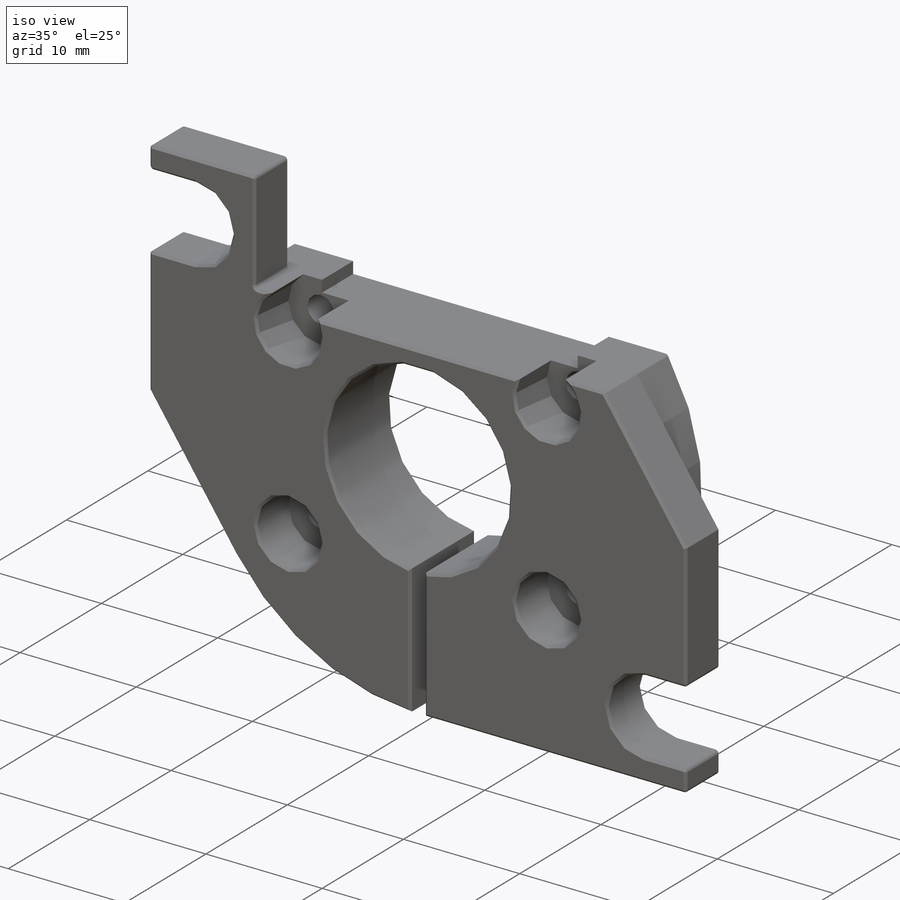
[diagram: iso view]
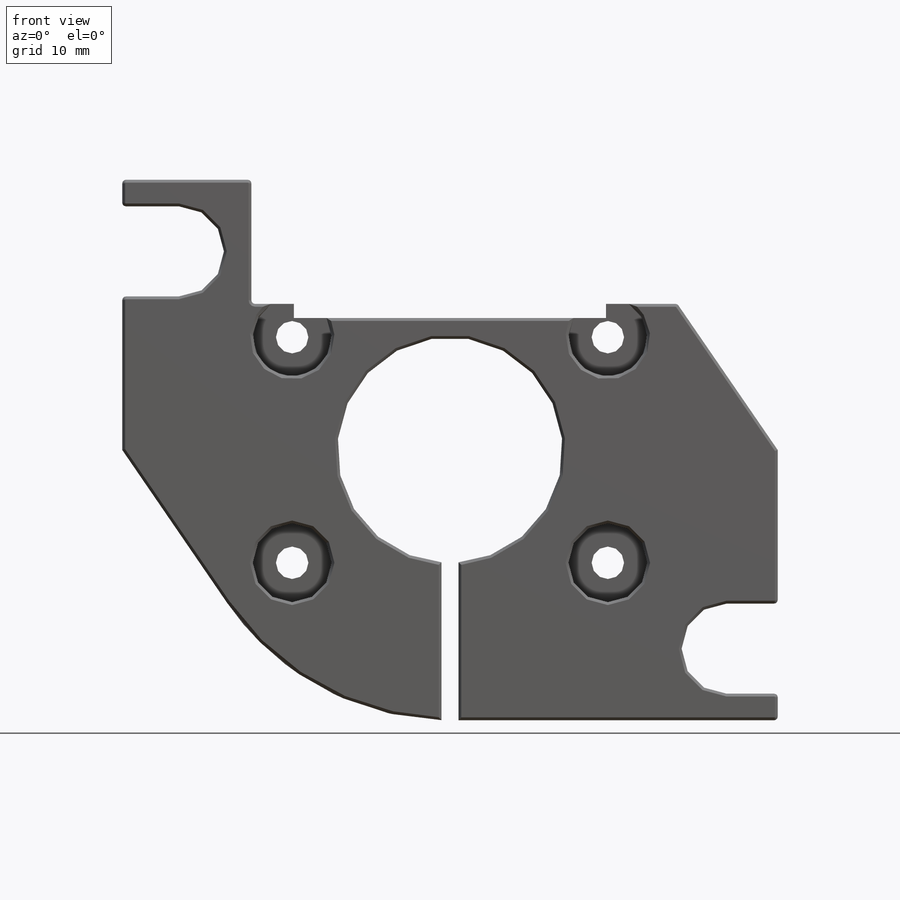
[diagram: front view]
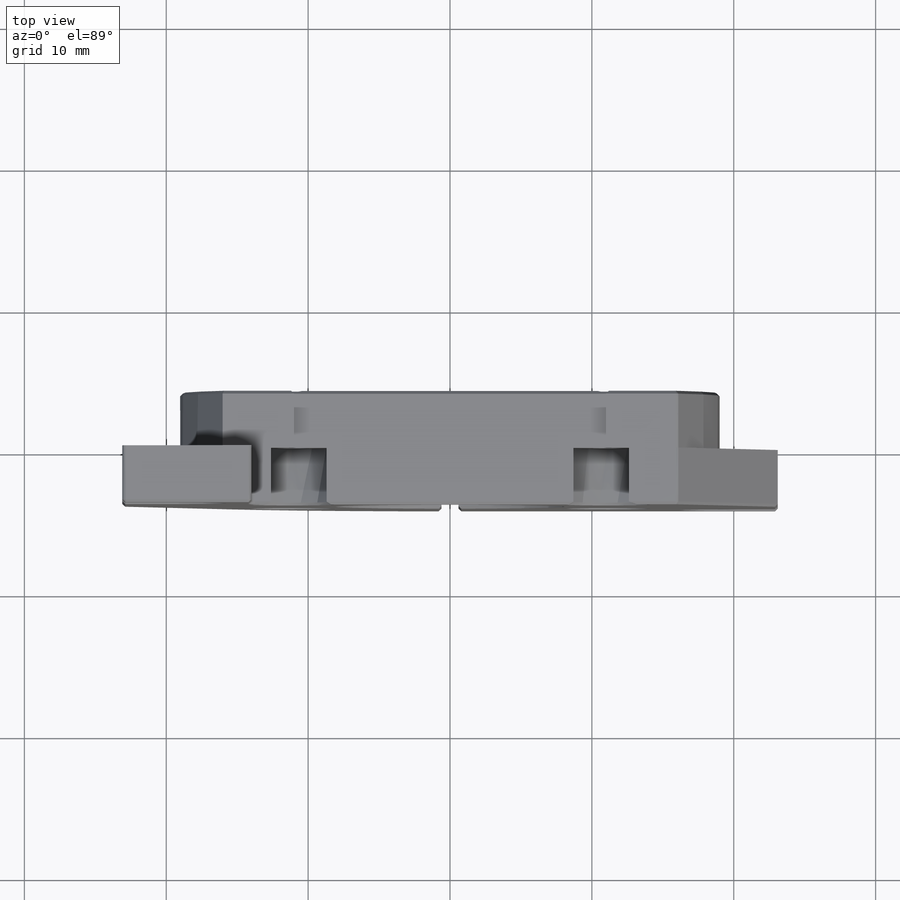
[diagram: top view]
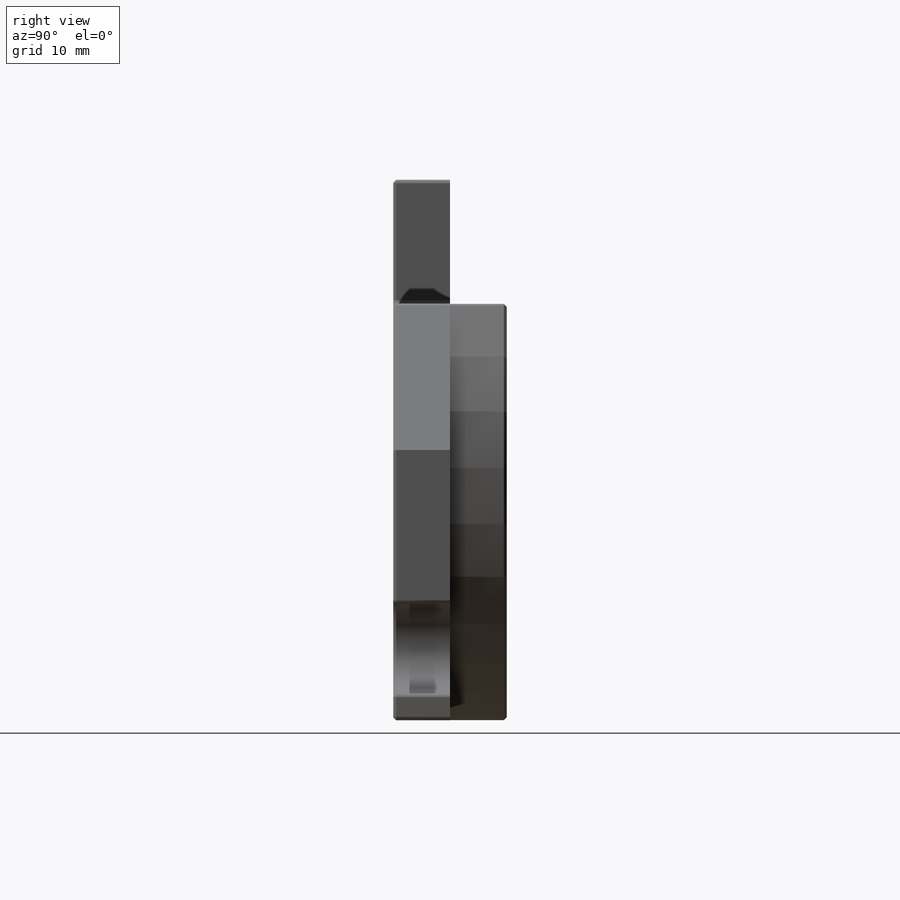
[diagram: right view]
SOLIDWORKS PART (.sldprt)
format: sldprt  version: not decoded by parser v0  size: 515,584 bytes
history: native  units: mm
features: sketch x11, cut_extrude x7, extrude x2, chamfer x2, material x1, hole x1, fillet x1 + 1 further entry (+13 scaffold rows collapsed)
feature tree (39):
  scaffold x13  (default folders/planes/origin — collapsed)
  material  "6061-T6 (SS)"
  "Origin"  ID=-1
  sketch  "Sketch1"  dims[D1=23.1mm D2=23.1mm D3=19.05mm D4=19.05mm]
  extrude  "Extrude1"  Depth=4mm
  sketch  "Sketch2"  dims[D1=14.0mm D2=10.3mm]
  cut_extrude  "Extrude2"  [1 undecoded]
  sketch  "Sketch3"  dims[D1=38.1mm]
  cut_extrude  "Extrude3"  [1 undecoded]
  sketch  "Sketch4"
  cut_extrude  "Extrude4"  Depth=10mm
  sketch  "Sketch5"  dims[D3=6.35mm D4=6.35mm D1=14.0mm D2=14.0mm D5=19.11mm D6=19.5mm]
  cut_extrude  "Extrude5"  [1 undecoded]
  sketch  "Sketch6"
  extrude  "Extrude6"  Depth=4mm
  sketch  "Sketch7"  dims[D1=1.0mm D2=11.0mm D3=11.0mm]
  cut_extrude  "Extrude7"  [1 undecoded]
  sketch  "Sketch9"  dims[D1=1.1938mm]
  cut_extrude  "Extrude9"  [1 undecoded]
  sketch  "Sketch8"  dims[D1=15.875mm]
  cut_extrude  "Extrude8"  [1 undecoded]
  hole  "CBORE for #2 Binding Head Machine Screw1"  Diameter=2.286mm Depth=8mm
  sketch  "3DSketch1"  dims[D1=11.1252mm D2=11.1252mm D3=7.9502mm D4=7.9502mm]
  sketch  "Sketch10"  dims[hole-wizard template sketch: 41 standard entries collapsed; hole parameters kept: c12.Thru Hole Dia.=2.286mm c12.Thru Hole Depth=8.0mm c12.C'Bore Dia.=~5.55752mm c12.C'Bore Depth=3.9878mm]
  fillet  "Fillet8"  Radius=0.254mm
  chamfer  "Chamfer1"  Distance=0.2mm Angle=45deg
  chamfer  "Chamfer2"  Distance=0.2mm Angle=45deg
decode coverage: 16 of 24 modeling features carry decoded parameters; 1 rows unclassified (native names shown)
note: ~ marks probable driven/reference dimensions
note: 6 parameter values undecoded
summary: no parameter record found for 6 features
note: suppression state not decoded; provenance and decode notes live in map.json
